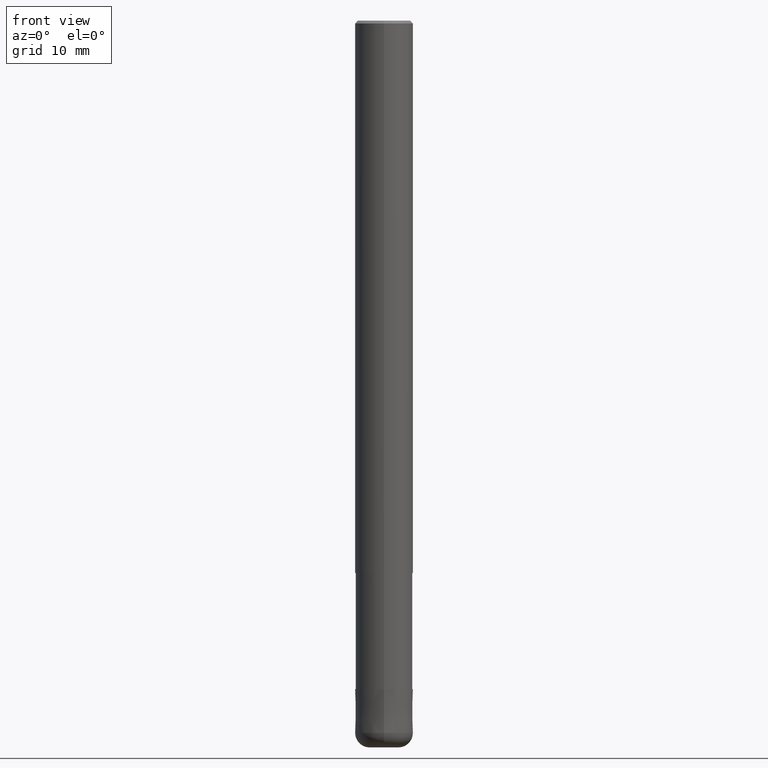
[diagram: clean part render]
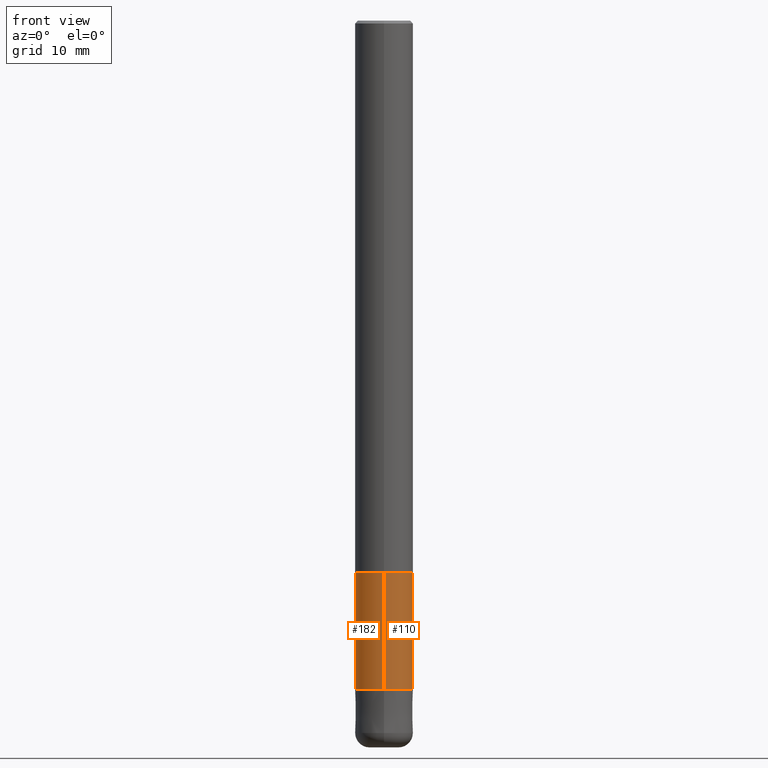
[diagram: same view with one multi-face feature highlighted, each face labeled with its STEP entity id]
A machine part, front view. The highlighted faces form ONE feature: a constant-radius fillet chain: 2 tangent blend faces with common blend radius 3.9099 mm. The faces share edges in the B-rep.
Their STEP definitions:
[1] entity #110 (Cylinder):
#102=EDGE_CURVE('',#162,#178,#239,.T.);
#110=ADVANCED_FACE('',(#249),#250,.T.);
#122=VERTEX_POINT('',#265);
#130=EDGE_CURVE('',#184,#122,#273,.T.);
#148=EDGE_CURVE('',#162,#184,#292,.T.);
#162=VERTEX_POINT('',#307);
#178=VERTEX_POINT('',#324);
#180=EDGE_CURVE('',#122,#178,#326,.T.);
#184=VERTEX_POINT('',#331);
#239=CIRCLE('',#390,3.90995);
#249=FACE_OUTER_BOUND('',#399,.T.);
#250=CYLINDRICAL_SURFACE('',#400,3.90995);
#265=CARTESIAN_POINT('',(4.7881496131278E-016,-3.90995,-92.0));
#273=CIRCLE('',#430,3.90995);
#292=LINE('',#456,#457);
#307=CARTESIAN_POINT('',(0.0,3.90995,-76.0));
#324=CARTESIAN_POINT('',(4.7881496131278E-016,-3.90995,-76.0));
#326=LINE('',#500,#501);
#331=CARTESIAN_POINT('',(0.0,3.90995,-92.0));
#390=AXIS2_PLACEMENT_3D('',#545,#546,#547);
#399=EDGE_LOOP('',(#566,#567,#568,#569));
#400=AXIS2_PLACEMENT_3D('',#570,#571,#572);
#430=AXIS2_PLACEMENT_3D('',#605,#606,#607);
#456=CARTESIAN_POINT('',(-4.7881496131278E-016,3.90995,-84.0));
#457=VECTOR('',#629,1.0);
#500=CARTESIAN_POINT('',(4.7881496131278E-016,-3.90995,-84.0));
#501=VECTOR('',#663,1.0);
#545=CARTESIAN_POINT('',(0.0,0.0,-76.0));
#546=DIRECTION('',(0.0,0.0,-1.0));
#547=DIRECTION('',(0.0,1.0,0.0));
#566=ORIENTED_EDGE('',*,*,#148,.F.);
#567=ORIENTED_EDGE('',*,*,#102,.T.);
#568=ORIENTED_EDGE('',*,*,#180,.F.);
#569=ORIENTED_EDGE('',*,*,#130,.F.);
#570=CARTESIAN_POINT('',(0.0,0.0,-84.0));
#571=DIRECTION('',(-0.0,-0.0,1.0));
#572=DIRECTION('',(0.0,1.0,0.0));
#605=CARTESIAN_POINT('',(0.0,0.0,-92.0));
#606=DIRECTION('',(0.0,0.0,-1.0));
#607=DIRECTION('',(0.0,1.0,0.0));
#629=DIRECTION('',(0.0,0.0,-1.0));
#663=DIRECTION('',(-0.0,-0.0,1.0));
[2] entity #182 (Cylinder):
#122=VERTEX_POINT('',#265);
#146=EDGE_CURVE('',#122,#184,#290,.T.);
#148=EDGE_CURVE('',#162,#184,#292,.T.);
#162=VERTEX_POINT('',#307);
#174=EDGE_CURVE('',#178,#162,#320,.T.);
#178=VERTEX_POINT('',#324);
#180=EDGE_CURVE('',#122,#178,#326,.T.);
#182=ADVANCED_FACE('',(#328),#329,.T.);
#184=VERTEX_POINT('',#331);
#265=CARTESIAN_POINT('',(4.7881496131278E-016,-3.90995,-92.0));
#290=CIRCLE('',#453,3.90995);
#292=LINE('',#456,#457);
#307=CARTESIAN_POINT('',(0.0,3.90995,-76.0));
#320=CIRCLE('',#493,3.90995);
#324=CARTESIAN_POINT('',(4.7881496131278E-016,-3.90995,-76.0));
#326=LINE('',#500,#501);
#328=FACE_OUTER_BOUND('',#503,.T.);
#329=CYLINDRICAL_SURFACE('',#504,3.90995);
#331=CARTESIAN_POINT('',(0.0,3.90995,-92.0));
#453=AXIS2_PLACEMENT_3D('',#626,#627,#628);
#456=CARTESIAN_POINT('',(-4.7881496131278E-016,3.90995,-84.0));
#457=VECTOR('',#629,1.0);
#493=AXIS2_PLACEMENT_3D('',#660,#661,#662);
#500=CARTESIAN_POINT('',(4.7881496131278E-016,-3.90995,-84.0));
#501=VECTOR('',#663,1.0);
#503=EDGE_LOOP('',(#665,#666,#667,#668));
#504=AXIS2_PLACEMENT_3D('',#669,#670,#671);
#626=CARTESIAN_POINT('',(0.0,0.0,-92.0));
#627=DIRECTION('',(0.0,0.0,-1.0));
#628=DIRECTION('',(0.0,1.0,0.0));
#629=DIRECTION('',(0.0,0.0,-1.0));
#660=CARTESIAN_POINT('',(0.0,0.0,-76.0));
#661=DIRECTION('',(0.0,0.0,-1.0));
#662=DIRECTION('',(0.0,1.0,0.0));
#663=DIRECTION('',(-0.0,-0.0,1.0));
#665=ORIENTED_EDGE('',*,*,#148,.T.);
#666=ORIENTED_EDGE('',*,*,#146,.F.);
#667=ORIENTED_EDGE('',*,*,#180,.T.);
#668=ORIENTED_EDGE('',*,*,#174,.T.);
#669=CARTESIAN_POINT('',(0.0,0.0,-84.0));
#670=DIRECTION('',(-0.0,-0.0,1.0));
#671=DIRECTION('',(0.0,1.0,0.0));